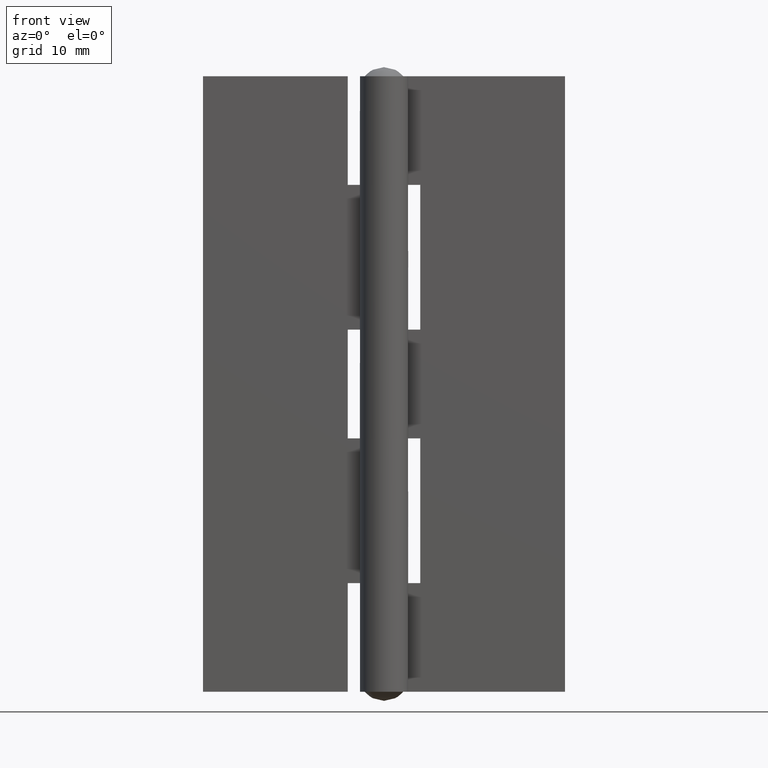
[diagram: clean part render]
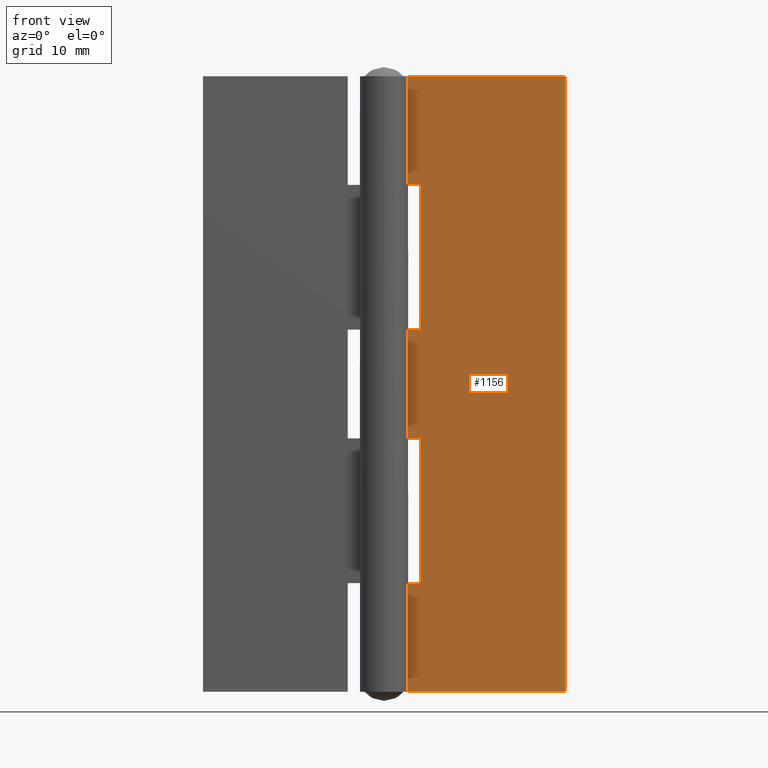
[diagram: same view with one face highlighted and labeled with its STEP entity id]
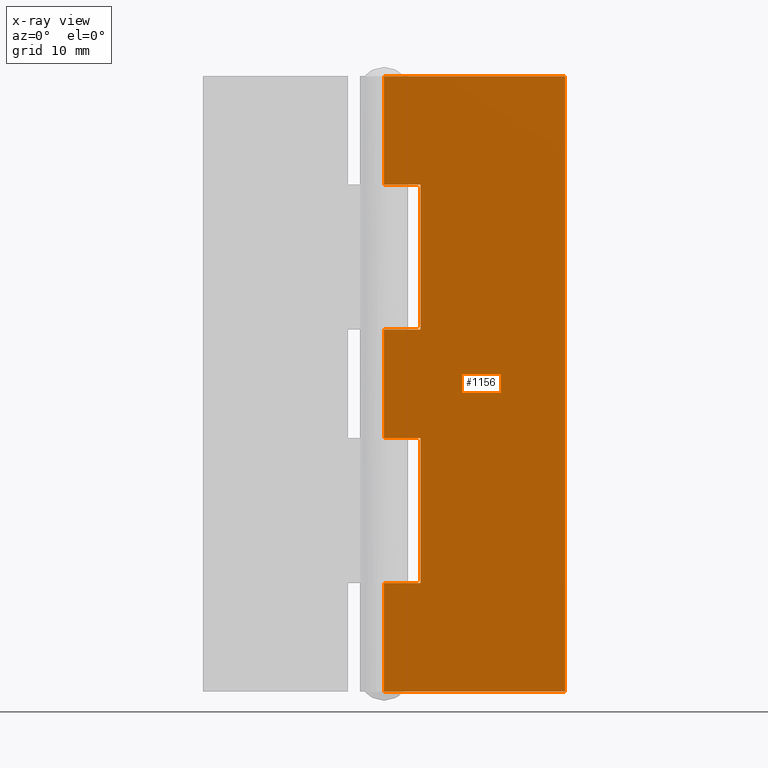
[diagram: x-ray of the same camera — body ghosted, the highlighted face saturated]
A machine part, front view. The second image highlights one B-rep face of the part: STEP entity #1156.
The next image is the same camera in x-ray: the body ghosted, the highlighted face saturated — about 0% of this face is hidden behind the body in this view.
In plain terms, the highlighted face is a freeform B-spline surface patch.
Its self-contained STEP definition (entity closure, byte-faithful):
#785=CARTESIAN_POINT('',(1.421085E-014,1.200000000000000,8.999999999999901));
#786=VERTEX_POINT('',#785);
#823=CARTESIAN_POINT('',(1.421085E-014,1.200000000000000,0.0));
#824=VERTEX_POINT('',#823);
#854=CARTESIAN_POINT('',(1.421085E-014,1.200000000000000,8.999999999999901));
#855=CARTESIAN_POINT('',(1.421085E-014,1.200000000000000,0.0));
#856=QUASI_UNIFORM_CURVE('',1,(#854,#855),.UNSPECIFIED.,.F.,.U.);
#857=EDGE_CURVE('',#786,#824,#856,.T.);
#920=CARTESIAN_POINT('',(1.421085E-014,1.200000000000000,30.0));
#921=VERTEX_POINT('',#920);
#950=CARTESIAN_POINT('',(1.421085E-014,1.200000000000000,21.0));
#951=VERTEX_POINT('',#950);
#981=CARTESIAN_POINT('',(1.421085E-014,1.200000000000000,30.0));
#982=CARTESIAN_POINT('',(1.421085E-014,1.200000000000000,21.0));
#983=QUASI_UNIFORM_CURVE('',1,(#981,#982),.UNSPECIFIED.,.F.,.U.);
#984=EDGE_CURVE('',#921,#951,#983,.T.);
#1011=CARTESIAN_POINT('',(1.421085E-014,1.200000000000000,42.0));
#1012=VERTEX_POINT('',#1011);
#1044=CARTESIAN_POINT('',(1.421085E-014,1.200000000000000,51.0));
#1045=VERTEX_POINT('',#1044);
#1046=CARTESIAN_POINT('',(1.421085E-014,1.200000000000000,51.0));
#1047=CARTESIAN_POINT('',(1.421085E-014,1.200000000000000,42.0));
#1048=QUASI_UNIFORM_CURVE('',1,(#1046,#1047),.UNSPECIFIED.,.F.,.U.);
#1049=EDGE_CURVE('',#1045,#1012,#1048,.T.);
#1089=CARTESIAN_POINT('',(-0.749249970927074,1.200000000000000,53.547449901152113));
#1090=CARTESIAN_POINT('',(-0.749249970927074,1.200000000000000,-2.547451269078700));
#1091=CARTESIAN_POINT('',(15.749250373258439,1.200000000000000,53.547449901152113));
#1092=CARTESIAN_POINT('',(15.749250373258439,1.200000000000000,-2.547451269078700));
#1093=B_SPLINE_SURFACE_WITH_KNOTS('',1,1,((#1089,#1091),(#1090,#1092)),.UNSPECIFIED.,.F.,.F.,.U.,(2,2),(2,2),(0.0,56.094901170230813),(0.0,16.498500344185519),.UNSPECIFIED.);
#1094=ORIENTED_EDGE('',*,*,#1049,.T.);
#1095=CARTESIAN_POINT('',(3.0,1.199999999999980,42.0));
#1096=VERTEX_POINT('',#1095);
#1097=CARTESIAN_POINT('',(1.421085E-014,1.200000000000000,42.0));
#1098=CARTESIAN_POINT('',(3.0,1.199999999999980,42.0));
#1099=QUASI_UNIFORM_CURVE('',1,(#1097,#1098),.UNSPECIFIED.,.F.,.U.);
#1100=EDGE_CURVE('',#1012,#1096,#1099,.T.);
#1101=ORIENTED_EDGE('',*,*,#1100,.T.);
#1102=CARTESIAN_POINT('',(3.0,1.199999999999980,30.0));
#1103=VERTEX_POINT('',#1102);
#1104=CARTESIAN_POINT('',(3.0,1.199999999999980,42.0));
#1105=CARTESIAN_POINT('',(3.0,1.199999999999980,30.0));
#1106=QUASI_UNIFORM_CURVE('',1,(#1104,#1105),.UNSPECIFIED.,.F.,.U.);
#1107=EDGE_CURVE('',#1096,#1103,#1106,.T.);
#1108=ORIENTED_EDGE('',*,*,#1107,.T.);
#1109=CARTESIAN_POINT('',(3.0,1.199999999999980,30.0));
#1110=CARTESIAN_POINT('',(1.421085E-014,1.200000000000000,30.0));
#1111=QUASI_UNIFORM_CURVE('',1,(#1109,#1110),.UNSPECIFIED.,.F.,.U.);
#1112=EDGE_CURVE('',#1103,#921,#1111,.T.);
#1113=ORIENTED_EDGE('',*,*,#1112,.T.);
#1114=ORIENTED_EDGE('',*,*,#984,.T.);
#1115=CARTESIAN_POINT('',(3.0,1.199999999999980,21.0));
#1116=VERTEX_POINT('',#1115);
#1117=CARTESIAN_POINT('',(1.421085E-014,1.200000000000000,21.0));
#1118=CARTESIAN_POINT('',(3.0,1.199999999999980,21.0));
#1119=QUASI_UNIFORM_CURVE('',1,(#1117,#1118),.UNSPECIFIED.,.F.,.U.);
#1120=EDGE_CURVE('',#951,#1116,#1119,.T.);
#1121=ORIENTED_EDGE('',*,*,#1120,.T.);
#1122=CARTESIAN_POINT('',(3.0,1.199999999999980,8.999999999999890));
#1123=VERTEX_POINT('',#1122);
#1124=CARTESIAN_POINT('',(3.0,1.199999999999980,21.0));
#1125=CARTESIAN_POINT('',(3.0,1.199999999999980,8.999999999999890));
#1126=QUASI_UNIFORM_CURVE('',1,(#1124,#1125),.UNSPECIFIED.,.F.,.U.);
#1127=EDGE_CURVE('',#1116,#1123,#1126,.T.);
#1128=ORIENTED_EDGE('',*,*,#1127,.T.);
#1129=CARTESIAN_POINT('',(3.0,1.199999999999980,8.999999999999890));
#1130=CARTESIAN_POINT('',(1.421085E-014,1.200000000000000,8.999999999999901));
#1131=QUASI_UNIFORM_CURVE('',1,(#1129,#1130),.UNSPECIFIED.,.F.,.U.);
#1132=EDGE_CURVE('',#1123,#786,#1131,.T.);
#1133=ORIENTED_EDGE('',*,*,#1132,.T.);
#1134=ORIENTED_EDGE('',*,*,#857,.T.);
#1135=CARTESIAN_POINT('',(15.0,1.200001000000014,0.0));
#1136=VERTEX_POINT('',#1135);
#1137=CARTESIAN_POINT('',(15.0,1.200001000000014,0.0));
#1138=CARTESIAN_POINT('',(1.421085E-014,1.200000000000000,0.0));
#1139=QUASI_UNIFORM_CURVE('',1,(#1137,#1138),.UNSPECIFIED.,.F.,.U.);
#1140=EDGE_CURVE('',#1136,#824,#1139,.T.);
#1141=ORIENTED_EDGE('',*,*,#1140,.F.);
#1142=CARTESIAN_POINT('',(15.0,1.200001000000014,51.0));
#1143=VERTEX_POINT('',#1142);
#1144=CARTESIAN_POINT('',(15.0,1.200001000000014,51.0));
#1145=CARTESIAN_POINT('',(15.0,1.200001000000014,0.0));
#1146=QUASI_UNIFORM_CURVE('',1,(#1144,#1145),.UNSPECIFIED.,.F.,.U.);
#1147=EDGE_CURVE('',#1143,#1136,#1146,.T.);
#1148=ORIENTED_EDGE('',*,*,#1147,.F.);
#1149=CARTESIAN_POINT('',(15.0,1.200001000000014,51.0));
#1150=CARTESIAN_POINT('',(1.421085E-014,1.200000000000000,51.0));
#1151=QUASI_UNIFORM_CURVE('',1,(#1149,#1150),.UNSPECIFIED.,.F.,.U.);
#1152=EDGE_CURVE('',#1143,#1045,#1151,.T.);
#1153=ORIENTED_EDGE('',*,*,#1152,.T.);
#1154=EDGE_LOOP('',(#1094,#1101,#1108,#1113,#1114,#1121,#1128,#1133,#1134,#1141,#1148,#1153));
#1155=FACE_OUTER_BOUND('',#1154,.T.);
#1156=ADVANCED_FACE('',(#1155),#1093,.T.);